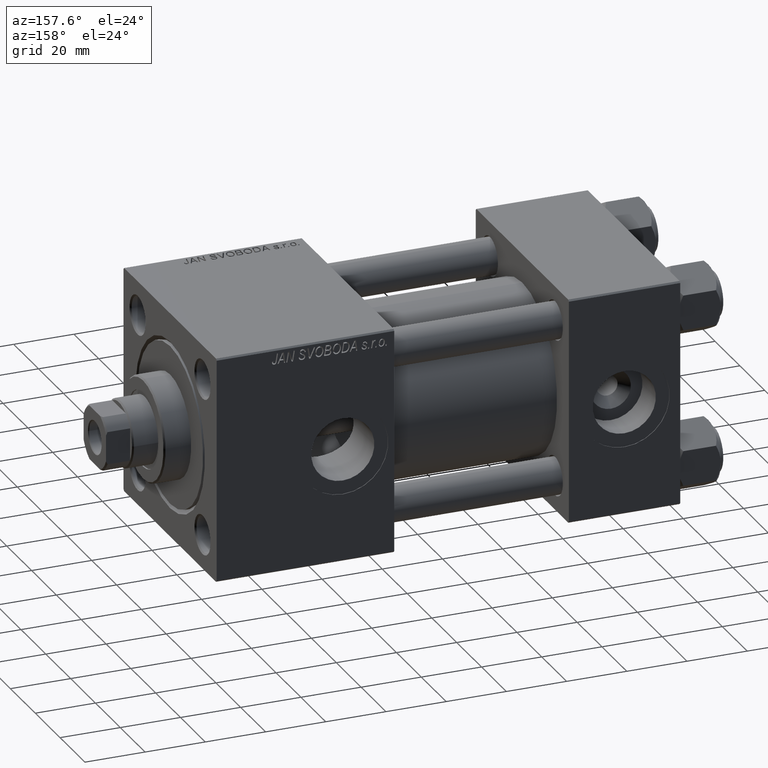
[diagram: clean part render]
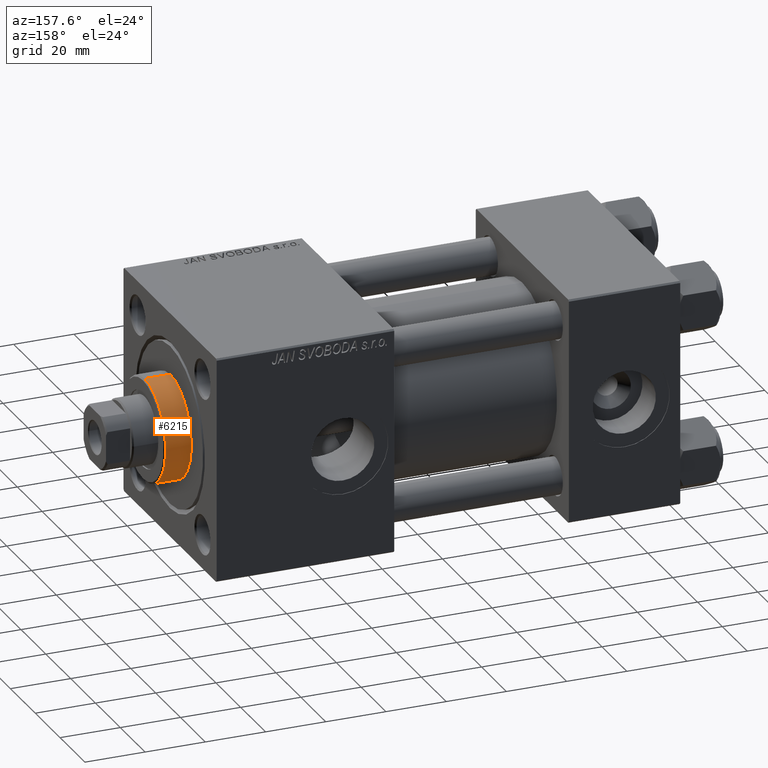
[diagram: same view with one face highlighted and labeled with its STEP entity id]
A machine part, auxiliary view. The second image highlights one B-rep face of the part: STEP entity #6215.
In plain terms, the highlighted cylindrical surface (partial cylindrical patch) has radius 17 mm, axis along (-1, -0, -0).
Its self-contained STEP definition (entity closure, byte-faithful):
#164 = DIRECTION ( 'NONE',  ( -0.000000000000000000, -0.000000000000000000, -1.000000000000000000 ) ) ;
#640 = DIRECTION ( 'NONE',  ( -0.000000000000000000, -0.000000000000000000, -1.000000000000000000 ) ) ;
#3322 = AXIS2_PLACEMENT_3D ( 'NONE', #8045, #20700, #8827 ) ;
#4608 = DIRECTION ( 'NONE',  ( 0.000000000000000000, 0.000000000000000000, 1.000000000000000000 ) ) ;
#5362 = EDGE_LOOP ( 'NONE', ( #13301, #48154, #28292, #45777 ) ) ;
#6215 = ADVANCED_FACE ( 'NONE', ( #40004 ), #20707, .T. ) ;
#6711 = CARTESIAN_POINT ( 'NONE',  ( 17.00000000000000000, 2.081899558550500280E-15, 37.19999999999999574 ) ) ;
#7789 = DIRECTION ( 'NONE',  ( 1.000000000000000000, 0.000000000000000000, 0.000000000000000000 ) ) ;
#7983 = LINE ( 'NONE', #32513, #19574 ) ;
#8045 = CARTESIAN_POINT ( 'NONE',  ( 0.000000000000000000, 0.000000000000000000, 37.19999999999999574 ) ) ;
#8827 = DIRECTION ( 'NONE',  ( 1.000000000000000000, 0.000000000000000000, 0.000000000000000000 ) ) ;
#9996 = EDGE_CURVE ( 'NONE', #15445, #49589, #7983, .T. ) ;
#11994 = VECTOR ( 'NONE', #164, 1000.000000000000000 ) ;
#13301 = ORIENTED_EDGE ( 'NONE', *, *, #22445, .T. ) ;
#14403 = VERTEX_POINT ( 'NONE', #35607 ) ;
#15445 = VERTEX_POINT ( 'NONE', #6711 ) ;
#15958 = CIRCLE ( 'NONE', #49648, 17.00000000000000000 ) ;
#19574 = VECTOR ( 'NONE', #39938, 1000.000000000000000 ) ;
#20218 = LINE ( 'NONE', #36341, #11994 ) ;
#20700 = DIRECTION ( 'NONE',  ( 0.000000000000000000, 0.000000000000000000, -1.000000000000000000 ) ) ;
#20707 = CYLINDRICAL_SURFACE ( 'NONE', #37113, 17.00000000000000000 ) ;
#22379 = EDGE_CURVE ( 'NONE', #49589, #32571, #15958, .T. ) ;
#22445 = EDGE_CURVE ( 'NONE', #14403, #15445, #26901, .T. ) ;
#26901 = CIRCLE ( 'NONE', #3322, 17.00000000000000000 ) ;
#28292 = ORIENTED_EDGE ( 'NONE', *, *, #22379, .T. ) ;
#32058 = CARTESIAN_POINT ( 'NONE',  ( 0.000000000000000000, 0.000000000000000000, 28.69999999999999929 ) ) ;
#32513 = CARTESIAN_POINT ( 'NONE',  ( 17.00000000000000000, 2.081899558550500280E-15, 37.69999999999999574 ) ) ;
#32571 = VERTEX_POINT ( 'NONE', #50211 ) ;
#33318 = EDGE_CURVE ( 'NONE', #14403, #32571, #20218, .T. ) ;
#35607 = CARTESIAN_POINT ( 'NONE',  ( -17.00000000000000000, 0.000000000000000000, 37.19999999999999574 ) ) ;
#36341 = CARTESIAN_POINT ( 'NONE',  ( -17.00000000000000000, 0.000000000000000000, 37.69999999999999574 ) ) ;
#36828 = CARTESIAN_POINT ( 'NONE',  ( 0.000000000000000000, 0.000000000000000000, 37.69999999999999574 ) ) ;
#37113 = AXIS2_PLACEMENT_3D ( 'NONE', #36828, #640, #45773 ) ;
#39938 = DIRECTION ( 'NONE',  ( -0.000000000000000000, -0.000000000000000000, -1.000000000000000000 ) ) ;
#40004 = FACE_OUTER_BOUND ( 'NONE', #5362, .T. ) ;
#41694 = CARTESIAN_POINT ( 'NONE',  ( 17.00000000000000000, 2.081899558550500280E-15, 28.69999999999999929 ) ) ;
#45773 = DIRECTION ( 'NONE',  ( -1.000000000000000000, 0.000000000000000000, 0.000000000000000000 ) ) ;
#45777 = ORIENTED_EDGE ( 'NONE', *, *, #33318, .F. ) ;
#48154 = ORIENTED_EDGE ( 'NONE', *, *, #9996, .T. ) ;
#49589 = VERTEX_POINT ( 'NONE', #41694 ) ;
#49648 = AXIS2_PLACEMENT_3D ( 'NONE', #32058, #4608, #7789 ) ;
#50211 = CARTESIAN_POINT ( 'NONE',  ( -17.00000000000000000, 0.000000000000000000, 28.69999999999999929 ) ) ;